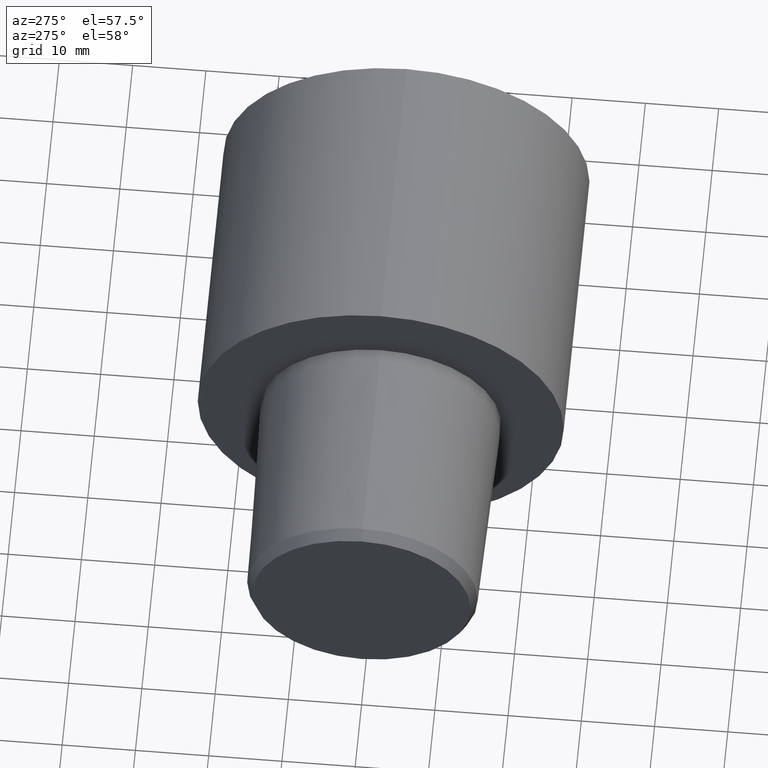
[diagram: clean part render]
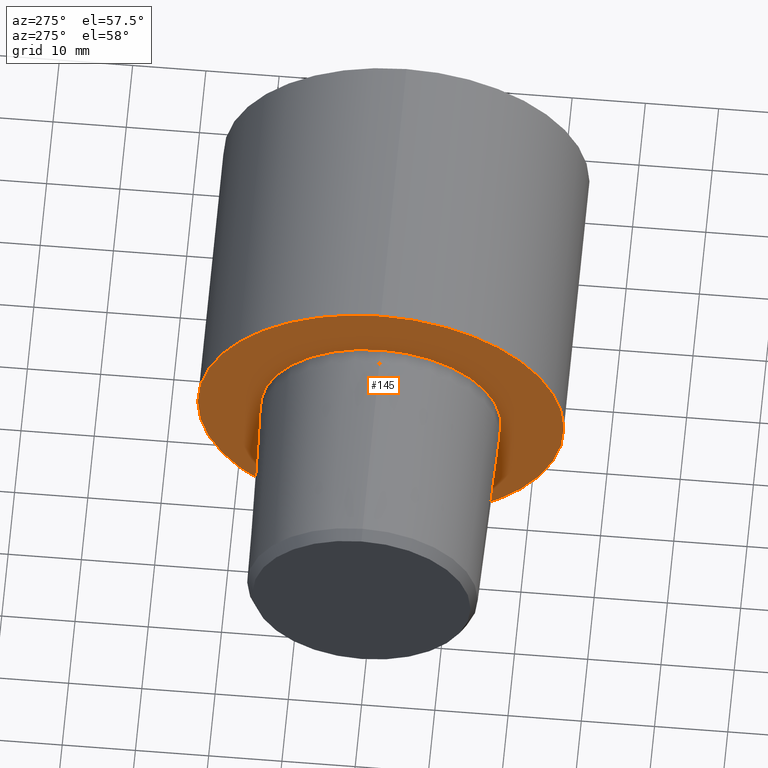
[diagram: same view with one face highlighted and labeled with its STEP entity id]
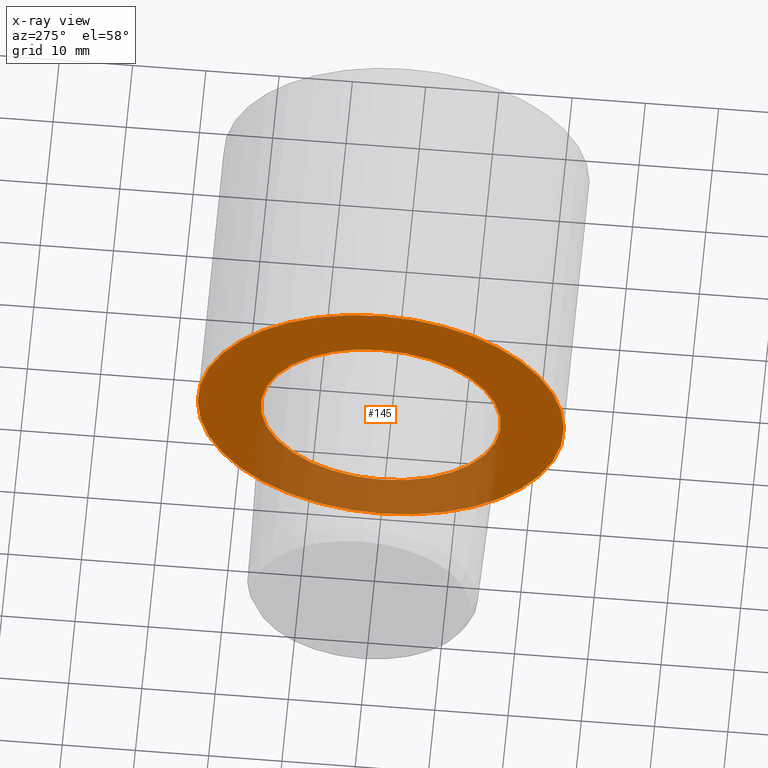
[diagram: x-ray of the same camera — body ghosted, the highlighted face saturated]
A machine part, auxiliary view. The second image highlights one B-rep face of the part: STEP entity #145.
The next image is the same camera in x-ray: the body ghosted, the highlighted face saturated — about 29% of this face is hidden behind the body in this view.
In plain terms, the highlighted planar face has unit normal (1, 0, 0).
Its self-contained STEP definition (entity closure, byte-faithful):
#2 = EDGE_CURVE ( 'NONE', #222, #269, #85, .T. ) ;
#5 = ORIENTED_EDGE ( 'NONE', *, *, #141, .F. ) ;
#38 = AXIS2_PLACEMENT_3D ( 'NONE', #335, #164, #331 ) ;
#43 = CIRCLE ( 'NONE', #87, 16.40000330327199762 ) ;
#45 = CARTESIAN_POINT ( 'NONE',  ( 0.000000000000000000, 0.000000000000000000, 0.000000000000000000 ) ) ;
#63 = CARTESIAN_POINT ( 'NONE',  ( 0.000000000000000000, 24.98999997451020150, 0.000000000000000000 ) ) ;
#64 = FACE_OUTER_BOUND ( 'NONE', #294, .T. ) ;
#69 = DIRECTION ( 'NONE',  ( 0.000000000000000000, 0.000000000000000000, 1.000000000000000000 ) ) ;
#77 = EDGE_CURVE ( 'NONE', #269, #222, #277, .T. ) ;
#82 = VERTEX_POINT ( 'NONE', #148 ) ;
#85 = CIRCLE ( 'NONE', #38, 24.98999997451020150 ) ;
#86 = CARTESIAN_POINT ( 'NONE',  ( 0.000000000000000000, 0.000000000000000000, 0.000000000000000000 ) ) ;
#87 = AXIS2_PLACEMENT_3D ( 'NONE', #45, #273, #169 ) ;
#100 = DIRECTION ( 'NONE',  ( 1.000000000000000000, 0.000000000000000000, 0.000000000000000000 ) ) ;
#119 = CARTESIAN_POINT ( 'NONE',  ( 0.000000000000000000, 0.000000000000000000, 24.98999997451020150 ) ) ;
#120 = ORIENTED_EDGE ( 'NONE', *, *, #77, .T. ) ;
#141 = EDGE_CURVE ( 'NONE', #82, #306, #215, .T. ) ;
#145 = ADVANCED_FACE ( 'NONE', ( #184, #64 ), #351, .F. ) ;
#148 = CARTESIAN_POINT ( 'NONE',  ( 0.000000000000000000, 0.000000000000000000, 16.40000330327199762 ) ) ;
#164 = DIRECTION ( 'NONE',  ( -1.000000000000000000, 0.000000000000000000, 0.000000000000000000 ) ) ;
#169 = DIRECTION ( 'NONE',  ( 0.000000000000000000, 0.000000000000000000, 1.000000000000000000 ) ) ;
#179 = DIRECTION ( 'NONE',  ( -1.000000000000000000, 0.000000000000000000, 0.000000000000000000 ) ) ;
#182 = AXIS2_PLACEMENT_3D ( 'NONE', #63, #100, #186 ) ;
#184 = FACE_BOUND ( 'NONE', #253, .T. ) ;
#185 = ORIENTED_EDGE ( 'NONE', *, *, #334, .F. ) ;
#186 = DIRECTION ( 'NONE',  ( 0.000000000000000000, 1.000000000000000000, 0.000000000000000000 ) ) ;
#192 = CARTESIAN_POINT ( 'NONE',  ( 0.000000000000000000, 2.008421155135807723E-15, -16.40000330327199762 ) ) ;
#195 = AXIS2_PLACEMENT_3D ( 'NONE', #325, #179, #69 ) ;
#215 = CIRCLE ( 'NONE', #195, 16.40000330327199762 ) ;
#222 = VERTEX_POINT ( 'NONE', #119 ) ;
#224 = DIRECTION ( 'NONE',  ( 0.000000000000000000, 0.000000000000000000, 1.000000000000000000 ) ) ;
#243 = CARTESIAN_POINT ( 'NONE',  ( 0.000000000000000000, 3.060392347947635560E-15, -24.98999997451020150 ) ) ;
#245 = AXIS2_PLACEMENT_3D ( 'NONE', #86, #255, #224 ) ;
#253 = EDGE_LOOP ( 'NONE', ( #5, #185 ) ) ;
#255 = DIRECTION ( 'NONE',  ( -1.000000000000000000, 0.000000000000000000, 0.000000000000000000 ) ) ;
#269 = VERTEX_POINT ( 'NONE', #243 ) ;
#273 = DIRECTION ( 'NONE',  ( -1.000000000000000000, 0.000000000000000000, 0.000000000000000000 ) ) ;
#277 = CIRCLE ( 'NONE', #245, 24.98999997451020150 ) ;
#294 = EDGE_LOOP ( 'NONE', ( #301, #120 ) ) ;
#301 = ORIENTED_EDGE ( 'NONE', *, *, #2, .T. ) ;
#306 = VERTEX_POINT ( 'NONE', #192 ) ;
#325 = CARTESIAN_POINT ( 'NONE',  ( 0.000000000000000000, 0.000000000000000000, 0.000000000000000000 ) ) ;
#331 = DIRECTION ( 'NONE',  ( 0.000000000000000000, 0.000000000000000000, 1.000000000000000000 ) ) ;
#334 = EDGE_CURVE ( 'NONE', #306, #82, #43, .T. ) ;
#335 = CARTESIAN_POINT ( 'NONE',  ( 0.000000000000000000, 0.000000000000000000, 0.000000000000000000 ) ) ;
#351 = PLANE ( 'NONE',  #182 ) ;